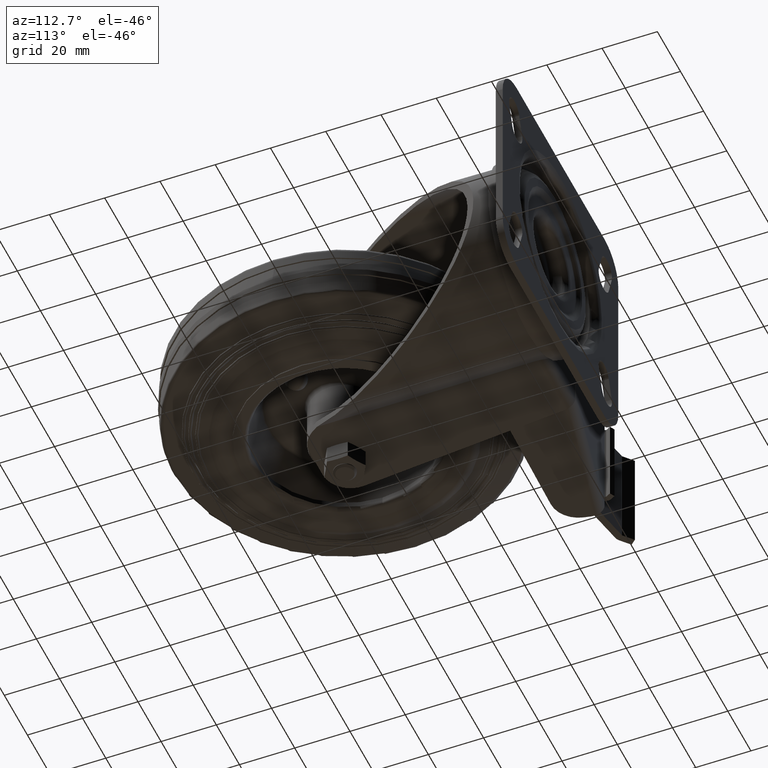
[diagram: clean part render]
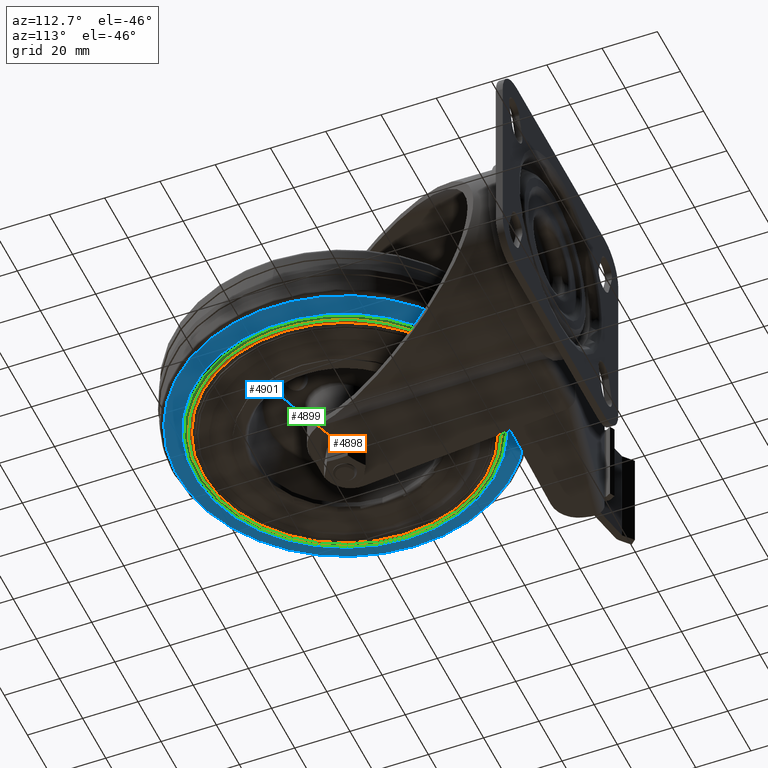
[diagram: same view with three faces highlighted in distinct colors, each labeled with its STEP entity id]
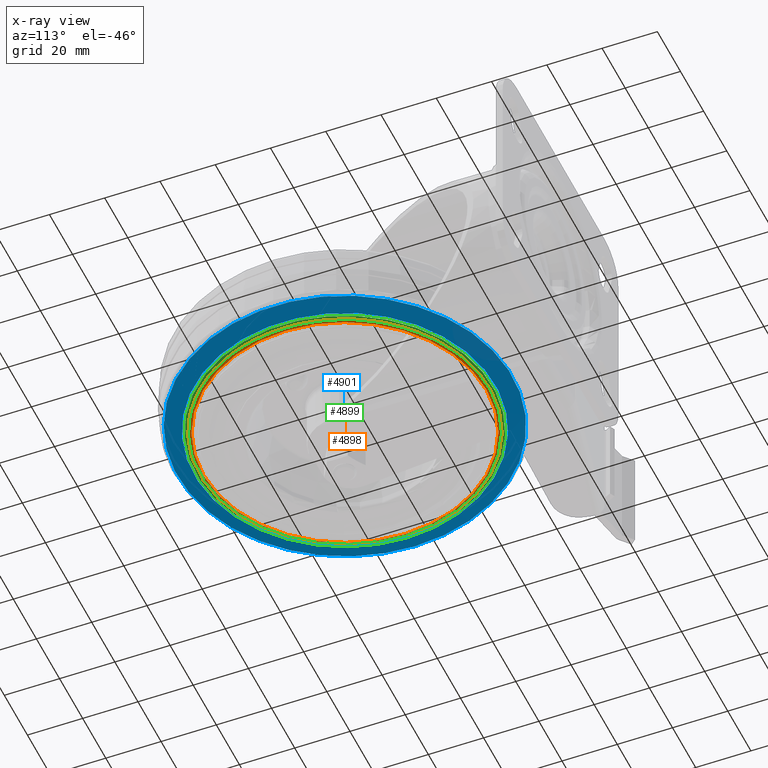
[diagram: x-ray of the same camera — body ghosted, the three highlighted faces saturated]
A machine part, auxiliary view with three faces highlighted in distinct colors.
The next image is the same camera in x-ray (body ghosted, the three faces saturated) — at least one of them is partly hidden behind the body in this view.
Their STEP definitions:

[orange] entity #4898 — the highlighted toroidal blend (fillet) surface has major radius 51.7308 mm and minor (blend) radius 0.5 mm.
#186=TOROIDAL_SURFACE('',#5268,51.7307554186,0.5);
#308=CIRCLE('',#5267,51.2579961308);
#309=CIRCLE('',#5269,52.2035147064);
#310=CIRCLE('',#5270,0.5);
#533=FACE_OUTER_BOUND('',#837,.T.);
#837=EDGE_LOOP('',(#3235,#3236,#3237,#3238));
#2009=VERTEX_POINT('',#7446);
#2010=VERTEX_POINT('',#7450);
#2481=EDGE_CURVE('',#2009,#2009,#308,.T.);
#2483=EDGE_CURVE('',#2010,#2010,#309,.T.);
#2484=EDGE_CURVE('',#2010,#2009,#310,.T.);
#3235=ORIENTED_EDGE('',*,*,#2483,.F.);
#3236=ORIENTED_EDGE('',*,*,#2484,.T.);
#3237=ORIENTED_EDGE('',*,*,#2481,.T.);
#3238=ORIENTED_EDGE('',*,*,#2484,.F.);
#4898=ADVANCED_FACE('',(#533),#186,.T.);
#5267=AXIS2_PLACEMENT_3D('',#7447,#5954,#5955);
#5268=AXIS2_PLACEMENT_3D('',#7449,#5957,#5958);
#5269=AXIS2_PLACEMENT_3D('',#7451,#5959,#5960);
#5270=AXIS2_PLACEMENT_3D('',#7452,#5961,#5962);
#5954=DIRECTION('center_axis',(0.,0.,1.));
#5955=DIRECTION('ref_axis',(1.,0.,0.));
#5957=DIRECTION('center_axis',(0.,0.,1.));
#5958=DIRECTION('ref_axis',(1.,0.,0.));
#5959=DIRECTION('center_axis',(0.,0.,1.));
#5960=DIRECTION('ref_axis',(1.,0.,0.));
#5961=DIRECTION('center_axis',(1.22464679914735E-16,-1.,0.));
#5962=DIRECTION('ref_axis',(-1.,-1.22464679914735E-16,0.));
#7446=CARTESIAN_POINT('',(-51.2579961308,-6.27729408922917E-15,-14.1209323608879));
#7447=CARTESIAN_POINT('Origin',(0.,0.,-14.1209323608879));
#7449=CARTESIAN_POINT('Origin',(0.,0.,-13.9581482836593));
#7450=CARTESIAN_POINT('',(-52.2035147064,-6.39308671894345E-15,-13.7953642064307));
#7451=CARTESIAN_POINT('Origin',(0.,0.,-13.7953642064307));
#7452=CARTESIAN_POINT('Origin',(-51.7307554186,-6.33519040408631E-15,-13.9581482836593));

[blue] entity #4901 — the highlighted conical surface has half-angle 71 deg.
#81=CONICAL_SURFACE('',#5276,60.5139165029,1.2391837689);
#312=CIRCLE('',#5274,54.4727592878);
#314=CIRCLE('',#5277,60.5139165029);
#536=FACE_OUTER_BOUND('',#840,.T.);
#840=EDGE_LOOP('',(#3247,#3248,#3249,#3250));
#1182=LINE('',#7464,#1581);
#1581=VECTOR('',#5978,60.5139165029);
#2012=VERTEX_POINT('',#7458);
#2013=VERTEX_POINT('',#7462);
#2487=EDGE_CURVE('',#2012,#2012,#312,.T.);
#2489=EDGE_CURVE('',#2013,#2013,#314,.T.);
#2490=EDGE_CURVE('',#2013,#2012,#1182,.T.);
#3247=ORIENTED_EDGE('',*,*,#2489,.F.);
#3248=ORIENTED_EDGE('',*,*,#2490,.T.);
#3249=ORIENTED_EDGE('',*,*,#2487,.T.);
#3250=ORIENTED_EDGE('',*,*,#2490,.F.);
#4901=ADVANCED_FACE('',(#536),#81,.T.);
#5274=AXIS2_PLACEMENT_3D('',#7459,#5970,#5971);
#5276=AXIS2_PLACEMENT_3D('',#7461,#5974,#5975);
#5277=AXIS2_PLACEMENT_3D('',#7463,#5976,#5977);
#5970=DIRECTION('center_axis',(0.,0.,1.));
#5971=DIRECTION('ref_axis',(1.,0.,0.));
#5974=DIRECTION('center_axis',(0.,0.,1.));
#5975=DIRECTION('ref_axis',(1.,0.,0.));
#5976=DIRECTION('center_axis',(0.,0.,1.));
#5977=DIRECTION('ref_axis',(1.,0.,0.));
#5978=DIRECTION('',(0.945518575594116,1.1579262971357E-16,-0.32556815447226));
#7458=CARTESIAN_POINT('',(-54.4727592878,-6.67098903025285E-15,-13.0140006357336));
#7459=CARTESIAN_POINT('Origin',(0.,0.,-13.0140006357336));
#7461=CARTESIAN_POINT('Origin',(0.,0.,-10.9338633903543));
#7462=CARTESIAN_POINT('',(-60.5139165029,-7.41081741491467E-15,-10.9338633903543));
#7463=CARTESIAN_POINT('Origin',(0.,0.,-10.9338633903543));
#7464=CARTESIAN_POINT('',(-60.5139165029,-7.41081741491467E-15,-10.9338633903543));

[green] entity #4899 — the highlighted conical surface has half-angle 71 deg.
#80=CONICAL_SURFACE('',#5271,53.5272407122,1.2391837689);
#309=CIRCLE('',#5269,52.2035147064);
#311=CIRCLE('',#5272,53.5272407122);
#534=FACE_OUTER_BOUND('',#838,.T.);
#838=EDGE_LOOP('',(#3239,#3240,#3241,#3242));
#1181=LINE('',#7456,#1580);
#1580=VECTOR('',#5967,53.5272407122);
#2010=VERTEX_POINT('',#7450);
#2011=VERTEX_POINT('',#7454);
#2483=EDGE_CURVE('',#2010,#2010,#309,.T.);
#2485=EDGE_CURVE('',#2011,#2011,#311,.T.);
#2486=EDGE_CURVE('',#2011,#2010,#1181,.T.);
#3239=ORIENTED_EDGE('',*,*,#2485,.F.);
#3240=ORIENTED_EDGE('',*,*,#2486,.T.);
#3241=ORIENTED_EDGE('',*,*,#2483,.T.);
#3242=ORIENTED_EDGE('',*,*,#2486,.F.);
#4899=ADVANCED_FACE('',(#534),#80,.T.);
#5269=AXIS2_PLACEMENT_3D('',#7451,#5959,#5960);
#5271=AXIS2_PLACEMENT_3D('',#7453,#5963,#5964);
#5272=AXIS2_PLACEMENT_3D('',#7455,#5965,#5966);
#5959=DIRECTION('center_axis',(0.,0.,1.));
#5960=DIRECTION('ref_axis',(1.,0.,0.));
#5963=DIRECTION('center_axis',(0.,0.,1.));
#5964=DIRECTION('ref_axis',(1.,0.,0.));
#5965=DIRECTION('center_axis',(0.,0.,1.));
#5966=DIRECTION('ref_axis',(1.,0.,0.));
#5967=DIRECTION('',(0.945518575594116,1.1579262971357E-16,-0.32556815447226));
#7450=CARTESIAN_POINT('',(-52.2035147064,-6.39308671894345E-15,-13.7953642064307));
#7451=CARTESIAN_POINT('Origin',(0.,0.,-13.7953642064307));
#7453=CARTESIAN_POINT('Origin',(0.,0.,-13.3395687901907));
#7454=CARTESIAN_POINT('',(-53.5272407122,-6.55519640053856E-15,-13.3395687901907));
#7455=CARTESIAN_POINT('Origin',(0.,0.,-13.3395687901907));
#7456=CARTESIAN_POINT('',(-53.5272407122,-6.55519640053856E-15,-13.3395687901907));